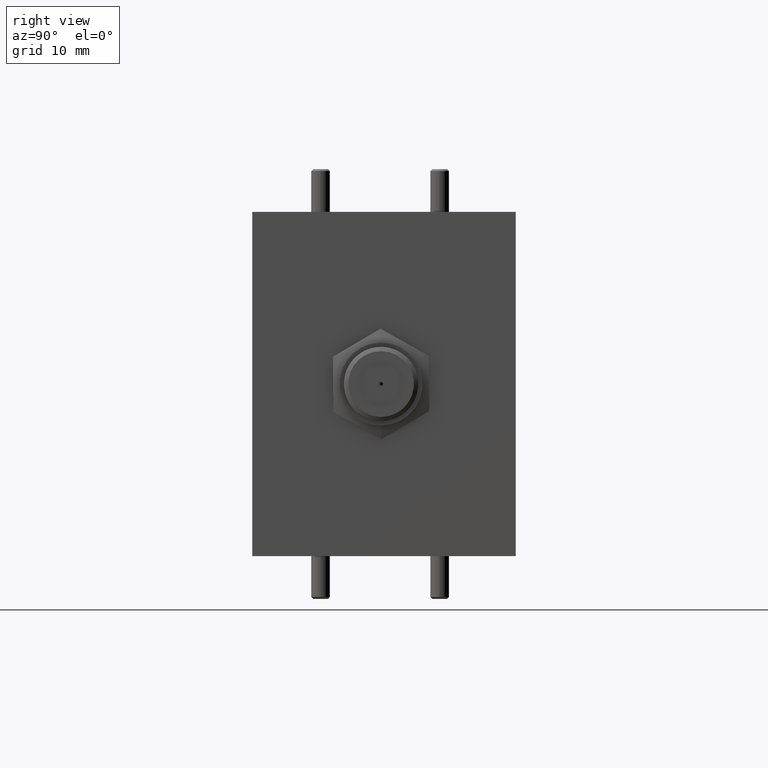
[diagram: clean part render]
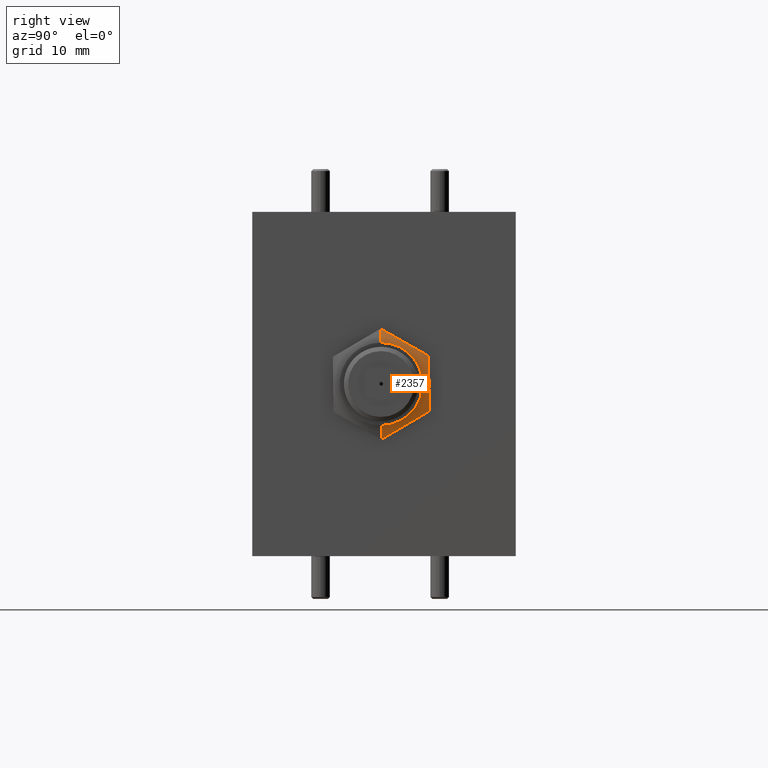
[diagram: same view with one face highlighted and labeled with its STEP entity id]
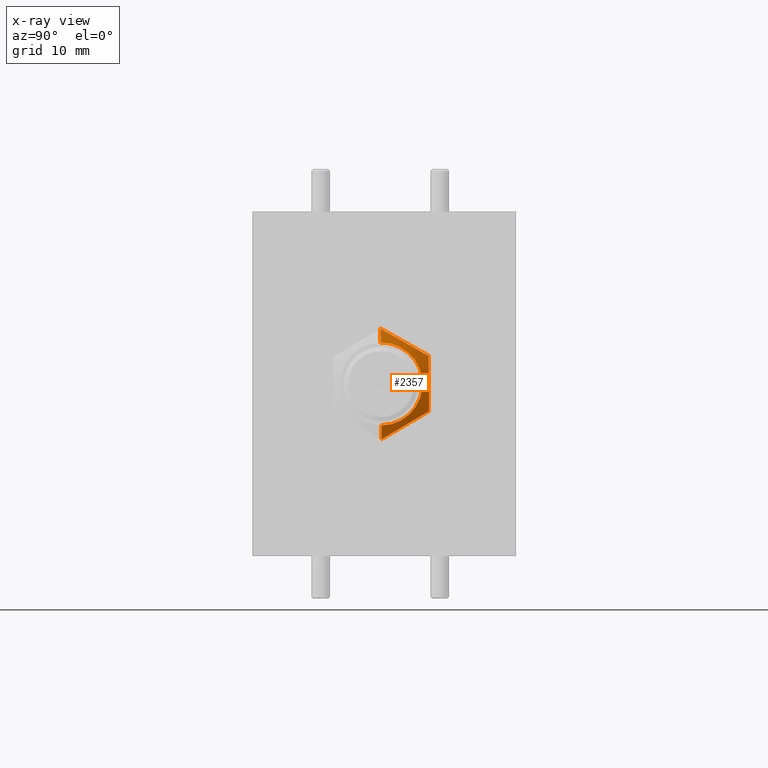
[diagram: x-ray of the same camera — body ghosted, the highlighted face saturated]
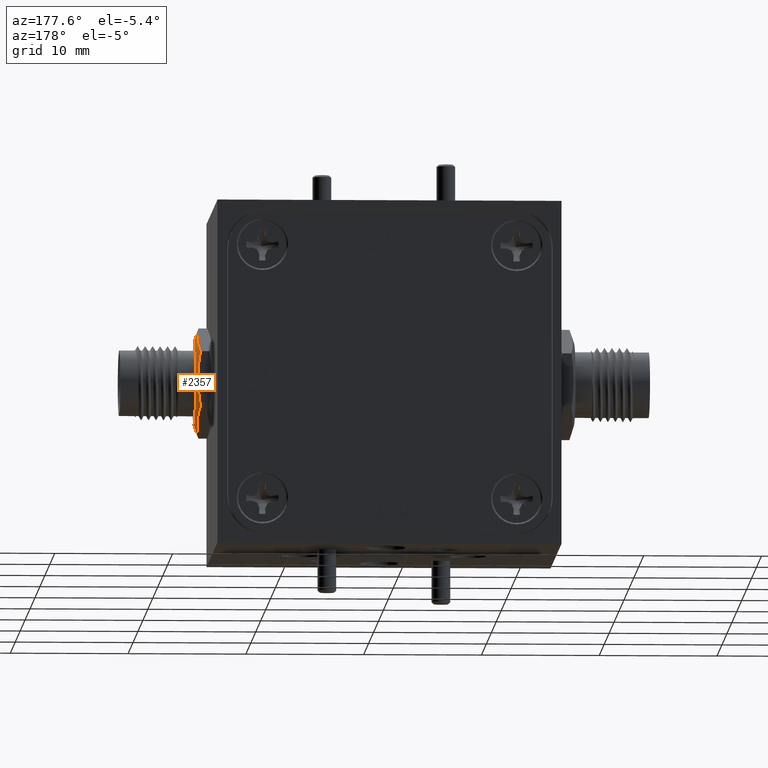
[diagram: same view with one face highlighted and labeled with its STEP entity id]
A machine part, right view. The second image highlights one B-rep face of the part: STEP entity #2357.
The next image is the same camera in x-ray: the body ghosted, the highlighted face saturated — about 0% of this face is hidden behind the body in this view.
A second angle (auxiliary view) of the same face is appended — the face is thin or edge-on in the first view.
In plain terms, the highlighted conical surface has half-angle 72.008 deg.
Its self-contained STEP definition (entity closure, byte-faithful):
#862 = VERTEX_POINT ( 'NONE', #14765 ) ;
#1772 = AXIS2_PLACEMENT_3D ( 'NONE', #11105, #30407, #26528 ) ;
#1932 = DIRECTION ( 'NONE',  ( -1.000000000000000000, 2.199185960041084575E-17, -4.557466558976034985E-15 ) ) ;
#2357 = ADVANCED_FACE ( 'NONE', ( #45605 ), #19367, .T. ) ;
#2600 = CARTESIAN_POINT ( 'NONE',  ( 0.6249999999999998890, 0.06510388554212993839, 0.1695947744574733684 ) ) ;
#3111 = CARTESIAN_POINT ( 'NONE',  ( 0.6250000000000004441, 0.1723338890377830168, 0.1089969467679221121 ) ) ;
#6479 = B_SPLINE_CURVE_WITH_KNOTS ( 'NONE', 3,
 ( #49877, #2600, #19031, #3111, #42672 ),
 .UNSPECIFIED., .F., .F.,
 ( 4, 1, 4 ),
 ( 2.309401076770150843E-07, 0.002346582434094309812, 0.004692933928080942653 ),
 .UNSPECIFIED. ) ;
#6674 = CARTESIAN_POINT ( 'NONE',  ( 0.6280237686397446284, 0.2002794465016430048, -0.02956616231746814552 ) ) ;
#7126 = VECTOR ( 'NONE', #7652, 39.37007874015748854 ) ;
#7652 = DIRECTION ( 'NONE',  ( -0.3088792003745519099, 0.008770189023791051877, -0.9510608410403954549 ) ) ;
#10408 = VECTOR ( 'NONE', #36830, 39.37007874015748854 ) ;
#11056 = CARTESIAN_POINT ( 'NONE',  ( 0.6224947622315950557, 0.1992830604179265663, 0.07848439214715295653 ) ) ;
#11105 = CARTESIAN_POINT ( 'NONE',  ( 0.6350000000000004530, 0.04000000000000127759, 2.663551793822656786E-15 ) ) ;
#11916 = VERTEX_POINT ( 'NONE', #31591 ) ;
#11948 = EDGE_LOOP ( 'NONE', ( #13544, #45865, #19250, #37249, #29108, #15656 ) ) ;
#12297 = VERTEX_POINT ( 'NONE', #23570 ) ;
#12951 = CARTESIAN_POINT ( 'NONE',  ( 0.6199999999999999956, 0.03829638466821667919, 0.1847442313798612346 ) ) ;
#13544 = ORIENTED_EDGE ( 'NONE', *, *, #31955, .F. ) ;
#14019 = DIRECTION ( 'NONE',  ( 4.435968303357747481E-15, 0.009221088472513079559, -0.9999574848599225296 ) ) ;
#14765 = CARTESIAN_POINT ( 'NONE',  ( 0.6349999999999997868, 0.03872228850116282706, 0.1385581735348969112 ) ) ;
#15400 = LINE ( 'NONE', #42865, #7126 ) ;
#15656 = ORIENTED_EDGE ( 'NONE', *, *, #47854, .F. ) ;
#16604 = B_SPLINE_CURVE_WITH_KNOTS ( 'NONE', 3,
 ( #37789, #11056, #49867, #19271, #38548, #6674, #23139, #18265 ),
 .UNSPECIFIED., .F., .F.,
 ( 4, 2, 2, 4 ),
 ( 0.003946723174360997934, 0.005131070374374851160, 0.006315417574388703520, 0.008684111974416409974 ),
 .UNSPECIFIED. ) ;
#17659 = EDGE_CURVE ( 'NONE', #11916, #33071, #26035, .T. ) ;
#18137 = CARTESIAN_POINT ( 'NONE',  ( 0.6200000000000002176, 0.1991413899116964148, 0.09384748984553473172 ) ) ;
#18265 = CARTESIAN_POINT ( 'NONE',  ( 0.6200000000000012168, 0.2008450052434816446, -0.09089674153432421300 ) ) ;
#18703 = EDGE_CURVE ( 'NONE', #45702, #11916, #16604, .T. ) ;
#18767 = CARTESIAN_POINT ( 'NONE',  ( 0.6200000000000012168, 0.2008450052434816446, -0.09089674153432421300 ) ) ;
#19031 = CARTESIAN_POINT ( 'NONE',  ( 0.6310769515458675150, 0.1187188872899563596, 0.1392958606126977472 ) ) ;
#19250 = ORIENTED_EDGE ( 'NONE', *, *, #41670, .T. ) ;
#19271 = CARTESIAN_POINT ( 'NONE',  ( 0.6273170013487697760, 0.1997110285420359566, 0.03207447749767376732 ) ) ;
#19367 = CONICAL_SURFACE ( 'NONE', #27553, 0.1847520861406805048, 1.256781943212411434 ) ;
#20346 = EDGE_CURVE ( 'NONE', #29958, #862, #48530, .T. ) ;
#23139 = CARTESIAN_POINT ( 'NONE',  ( 0.6249740850855420859, 0.2005625409897036082, -0.06026562400278154957 ) ) ;
#23570 = CARTESIAN_POINT ( 'NONE',  ( 0.6199999999999999956, 0.03829638466821670695, 0.1847442313798612068 ) ) ;
#25538 = LINE ( 'NONE', #12951, #10408 ) ;
#26035 = B_SPLINE_CURVE_WITH_KNOTS ( 'NONE', 3,
 ( #18767, #33931, #26231, #33688, #49352 ),
 .UNSPECIFIED., .F., .F.,
 ( 4, 1, 4 ),
 ( 2.309401076650022512E-07, 0.002346582434094306342, 0.004692933928080947857 ),
 .UNSPECIFIED. ) ;
#26231 = CARTESIAN_POINT ( 'NONE',  ( 0.6310769515458687362, 0.1212743102876339407, -0.1378204864570897747 ) ) ;
#26528 = DIRECTION ( 'NONE',  ( -4.928853670397500444E-15, -0.009221088472513086498, 0.9999574848599225296 ) ) ;
#27467 = CARTESIAN_POINT ( 'NONE',  ( 0.6350000000000011191, 0.04127771149883970730, -0.1385581735348914156 ) ) ;
#27553 = AXIS2_PLACEMENT_3D ( 'NONE', #37125, #1932, #14019 ) ;
#29108 = ORIENTED_EDGE ( 'NONE', *, *, #18703, .F. ) ;
#29958 = VERTEX_POINT ( 'NONE', #27467 ) ;
#30407 = DIRECTION ( 'NONE',  ( 1.000000000000000000, -2.199185960041084575E-17, 4.557466558976034985E-15 ) ) ;
#31591 = CARTESIAN_POINT ( 'NONE',  ( 0.6200000000000012168, 0.2008450052434816446, -0.09089674153432421300 ) ) ;
#31955 = EDGE_CURVE ( 'NONE', #862, #12297, #25538, .T. ) ;
#33071 = VERTEX_POINT ( 'NONE', #43815 ) ;
#33688 = CARTESIAN_POINT ( 'NONE',  ( 0.6250000000000016653, 0.06822718031706868913, -0.1691029830722669824 ) ) ;
#33931 = CARTESIAN_POINT ( 'NONE',  ( 0.6250000000000011102, 0.1743214402581989841, -0.1065379898419126919 ) ) ;
#36830 = DIRECTION ( 'NONE',  ( -0.3088792003745605697, -0.008770189023791155961, 0.9510608410403925683 ) ) ;
#37125 = CARTESIAN_POINT ( 'NONE',  ( 0.6200000000000007727, 0.04000000000000127759, 2.595255593981049959E-15 ) ) ;
#37249 = ORIENTED_EDGE ( 'NONE', *, *, #17659, .F. ) ;
#37789 = CARTESIAN_POINT ( 'NONE',  ( 0.6200000000000002176, 0.1991413899116964148, 0.09384748984553473172 ) ) ;
#38548 = CARTESIAN_POINT ( 'NONE',  ( 0.6280457457721466685, 0.1998533138270936482, 0.01664471167306939836 ) ) ;
#41670 = EDGE_CURVE ( 'NONE', #29958, #33071, #15400, .T. ) ;
#42672 = CARTESIAN_POINT ( 'NONE',  ( 0.6200000000000002176, 0.1991413899116964148, 0.09384748984553473172 ) ) ;
#42865 = CARTESIAN_POINT ( 'NONE',  ( 0.6200000000000015499, 0.04170361533178585517, -0.1847442313798560443 ) ) ;
#43815 = CARTESIAN_POINT ( 'NONE',  ( 0.6200000000000015499, 0.04170361533178646579, -0.1847442313798560165 ) ) ;
#45605 = FACE_OUTER_BOUND ( 'NONE', #11948, .T. ) ;
#45702 = VERTEX_POINT ( 'NONE', #18137 ) ;
#45865 = ORIENTED_EDGE ( 'NONE', *, *, #20346, .F. ) ;
#47854 = EDGE_CURVE ( 'NONE', #12297, #45702, #6479, .T. ) ;
#48530 = CIRCLE ( 'NONE', #1772, 0.1385640646055102954 ) ;
#49352 = CARTESIAN_POINT ( 'NONE',  ( 0.6200000000000015499, 0.04170361533178646579, -0.1847442313798560165 ) ) ;
#49867 = CARTESIAN_POINT ( 'NONE',  ( 0.6245405265580514786, 0.1994260260089715242, 0.06298085227016411713 ) ) ;
#49877 = CARTESIAN_POINT ( 'NONE',  ( 0.6199999999999999956, 0.03829638466821670695, 0.1847442313798612068 ) ) ;